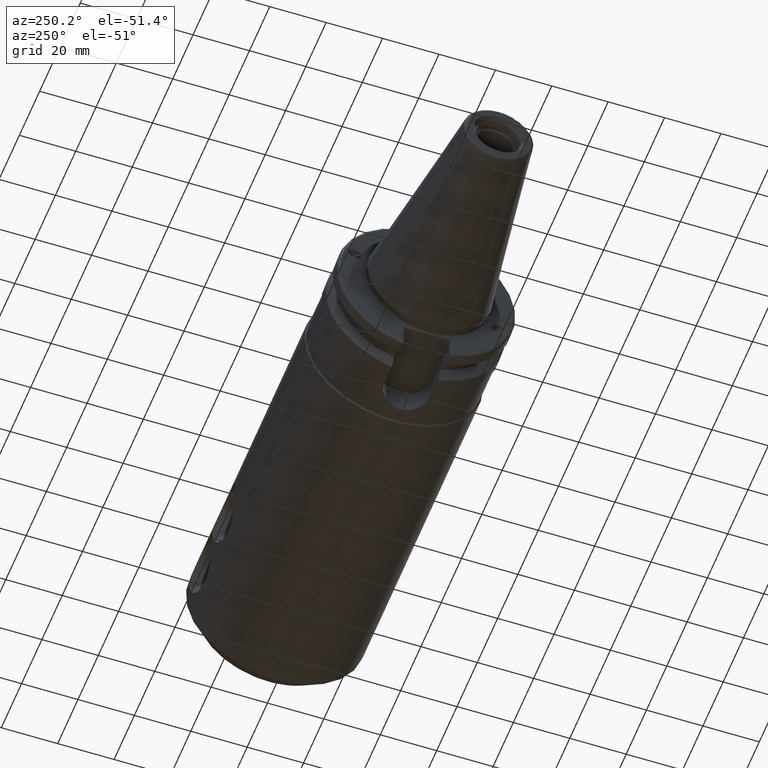
[diagram: clean part render]
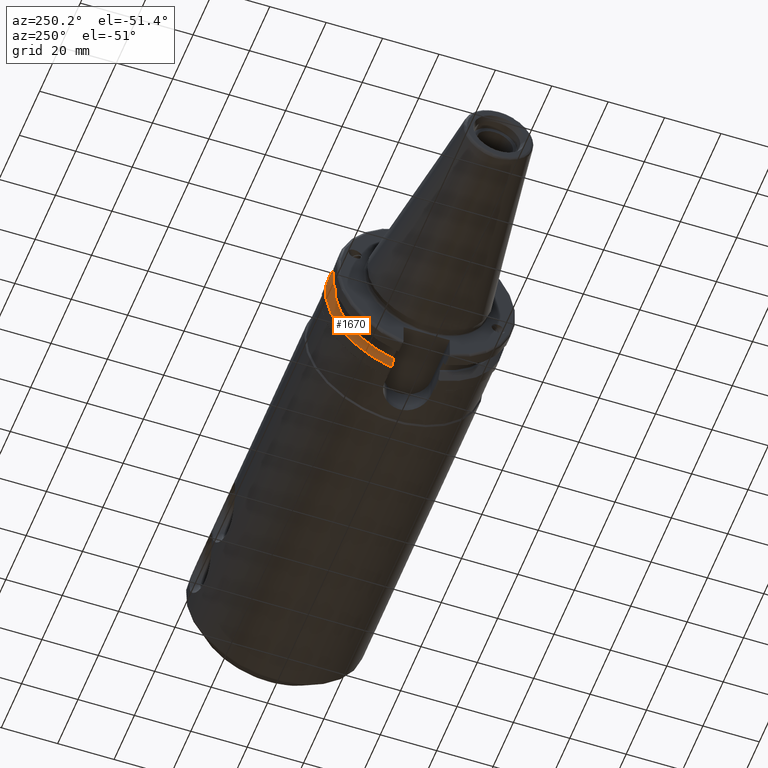
[diagram: same view with one face highlighted and labeled with its STEP entity id]
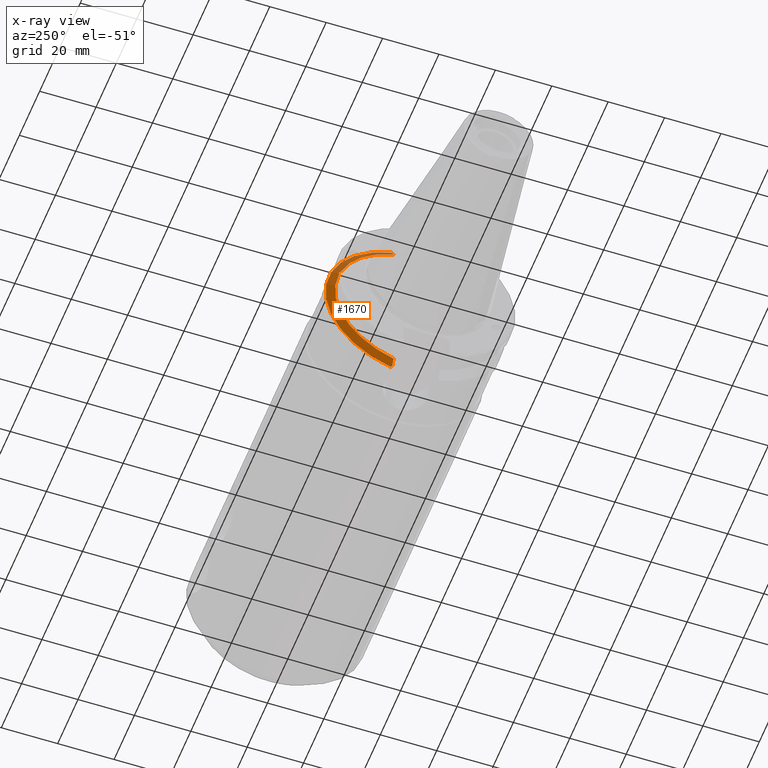
[diagram: x-ray of the same camera — body ghosted, the highlighted face saturated]
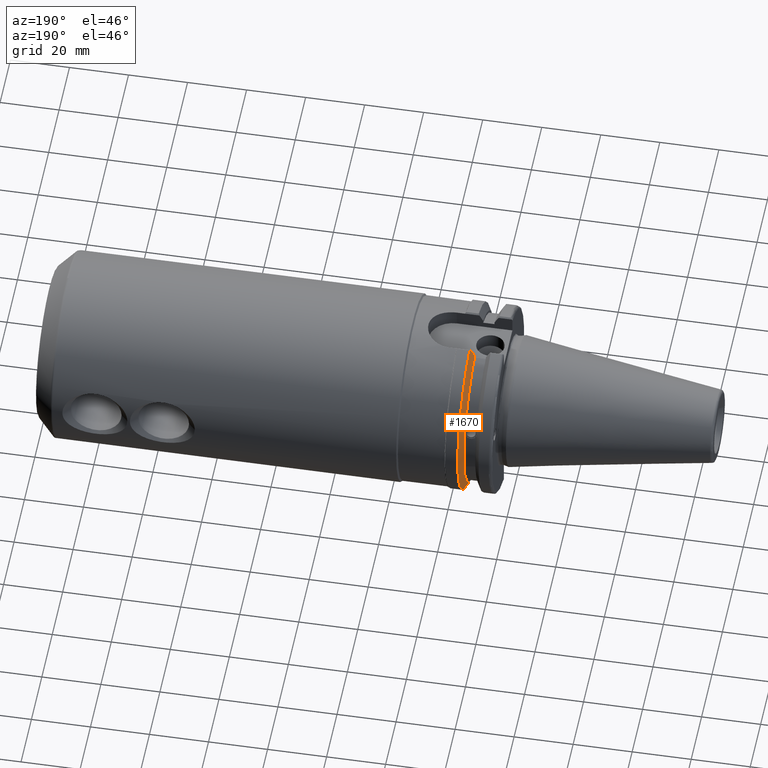
[diagram: same view with one face highlighted and labeled with its STEP entity id]
A machine part, auxiliary view. The second image highlights one B-rep face of the part: STEP entity #1670.
The next image is the same camera in x-ray: the body ghosted, the highlighted face saturated — about 3% of this face is hidden behind the body in this view.
A second angle (auxiliary view) of the same face is appended — the face is thin or edge-on in the first view.
In plain terms, the highlighted conical surface has half-angle 60 deg.
Its self-contained STEP definition (entity closure, byte-faithful):
#19=(
BOUNDED_CURVE()
B_SPLINE_CURVE(2,(#3201,#3202,#3203),.UNSPECIFIED.,.F.,.F.)
B_SPLINE_CURVE_WITH_KNOTS((3,3),(0.,0.276549142796799),.UNSPECIFIED.)
CURVE()
GEOMETRIC_REPRESENTATION_ITEM()
RATIONAL_B_SPLINE_CURVE((1.,1.00095203904259,1.00031614445126))
REPRESENTATION_ITEM('')
);
#20=(
BOUNDED_CURVE()
B_SPLINE_CURVE(2,(#3205,#3206,#3207),.UNSPECIFIED.,.F.,.F.)
B_SPLINE_CURVE_WITH_KNOTS((3,3),(0.,0.0639048713675657),.UNSPECIFIED.)
CURVE()
GEOMETRIC_REPRESENTATION_ITEM()
RATIONAL_B_SPLINE_CURVE((1.,1.00028444218289,1.00047644010584))
REPRESENTATION_ITEM('')
);
#21=(
BOUNDED_CURVE()
B_SPLINE_CURVE(2,(#3211,#3212,#3213),.UNSPECIFIED.,.F.,.F.)
B_SPLINE_CURVE_WITH_KNOTS((3,3),(0.329353533631213,0.393258405001023),
 .UNSPECIFIED.)
CURVE()
GEOMETRIC_REPRESENTATION_ITEM()
RATIONAL_B_SPLINE_CURVE((1.00047644010591,1.00028444218294,1.))
REPRESENTATION_ITEM('')
);
#22=(
BOUNDED_CURVE()
B_SPLINE_CURVE(2,(#3215,#3216,#3217),.UNSPECIFIED.,.F.,.F.)
B_SPLINE_CURVE_WITH_KNOTS((3,3),(0.0550586467390499,0.33160778953585),
 .UNSPECIFIED.)
CURVE()
GEOMETRIC_REPRESENTATION_ITEM()
RATIONAL_B_SPLINE_CURVE((1.00031614445126,1.00095203904259,1.))
REPRESENTATION_ITEM('')
);
#189=FACE_OUTER_BOUND('',#294,.T.);
#294=EDGE_LOOP('',(#1346,#1347,#1348,#1349,#1350,#1351,#1352,#1353,#1354));
#383=B_SPLINE_CURVE_WITH_KNOTS('',3,(#3126,#3127,#3128,#3129,#3130,#3131,
#3132,#3133),.UNSPECIFIED.,.F.,.F.,(4,2,2,4),(0.451995700189024,0.46454782854766,
0.504528771685165,0.544509714822671),.UNSPECIFIED.);
#387=B_SPLINE_CURVE_WITH_KNOTS('',3,(#3188,#3189,#3190,#3191,#3192,#3193,
#3194,#3195),.UNSPECIFIED.,.F.,.F.,(4,2,2,4),(0.544509714822671,0.584490657960176,
0.624471601097681,0.637023729456318),.UNSPECIFIED.);
#448=CIRCLE('',#1852,28.9593772964944);
#449=CIRCLE('',#1853,31.75);
#450=CIRCLE('',#1854,28.9593772964944);
#767=VERTEX_POINT('',#3123);
#768=VERTEX_POINT('',#3125);
#775=VERTEX_POINT('',#3186);
#776=VERTEX_POINT('',#3198);
#777=VERTEX_POINT('',#3200);
#778=VERTEX_POINT('',#3204);
#779=VERTEX_POINT('',#3208);
#780=VERTEX_POINT('',#3210);
#781=VERTEX_POINT('',#3214);
#980=EDGE_CURVE('',#768,#767,#383,.T.);
#988=EDGE_CURVE('',#767,#775,#387,.T.);
#989=EDGE_CURVE('',#775,#776,#448,.T.);
#990=EDGE_CURVE('',#776,#777,#19,.T.);
#991=EDGE_CURVE('',#778,#777,#20,.T.);
#992=EDGE_CURVE('',#779,#778,#449,.T.);
#993=EDGE_CURVE('',#780,#779,#21,.T.);
#994=EDGE_CURVE('',#780,#781,#22,.T.);
#995=EDGE_CURVE('',#781,#768,#450,.T.);
#1346=ORIENTED_EDGE('',*,*,#980,.T.);
#1347=ORIENTED_EDGE('',*,*,#988,.T.);
#1348=ORIENTED_EDGE('',*,*,#989,.T.);
#1349=ORIENTED_EDGE('',*,*,#990,.T.);
#1350=ORIENTED_EDGE('',*,*,#991,.F.);
#1351=ORIENTED_EDGE('',*,*,#992,.F.);
#1352=ORIENTED_EDGE('',*,*,#993,.F.);
#1353=ORIENTED_EDGE('',*,*,#994,.T.);
#1354=ORIENTED_EDGE('',*,*,#995,.T.);
#1618=CONICAL_SURFACE('',#1851,30.3546886482472,1.0471975511966);
#1670=ADVANCED_FACE('',(#189),#1618,.T.);
#1851=AXIS2_PLACEMENT_3D('',#3197,#2203,#2204);
#1852=AXIS2_PLACEMENT_3D('',#3199,#2205,#2206);
#1853=AXIS2_PLACEMENT_3D('',#3209,#2207,#2208);
#1854=AXIS2_PLACEMENT_3D('',#3218,#2209,#2210);
#2203=DIRECTION('center_axis',(1.,0.,0.));
#2204=DIRECTION('ref_axis',(0.,1.,0.));
#2205=DIRECTION('center_axis',(1.,0.,0.));
#2206=DIRECTION('ref_axis',(0.,0.,-1.));
#2207=DIRECTION('center_axis',(1.,0.,0.));
#2208=DIRECTION('ref_axis',(0.,0.,-1.));
#2209=DIRECTION('center_axis',(1.,0.,0.));
#2210=DIRECTION('ref_axis',(0.,0.,-1.));
#3123=CARTESIAN_POINT('',(13.227,27.51401829017,10.0142836826778));
#3125=CARTESIAN_POINT('',(13.042,27.4956274489925,9.09043478536247));
#3126=CARTESIAN_POINT('Ctrl Pts',(13.042,27.4956274489925,9.09043478536247));
#3127=CARTESIAN_POINT('Ctrl Pts',(13.0561204071996,27.5087667900418,9.12860597076219));
#3128=CARTESIAN_POINT('Ctrl Pts',(13.0695929817857,27.5206055003512,9.16696618806878));
#3129=CARTESIAN_POINT('Ctrl Pts',(13.122981441159,27.5642934663232,9.32791534028656));
#3130=CARTESIAN_POINT('Ctrl Pts',(13.1611197084175,27.5867382255984,9.46717946402648));
#3131=CARTESIAN_POINT('Ctrl Pts',(13.2133106446058,27.5847569104122,9.74771639360672));
#3132=CARTESIAN_POINT('Ctrl Pts',(13.227,27.559599249844,9.8890510252165));
#3133=CARTESIAN_POINT('Ctrl Pts',(13.227,27.51401829017,10.0142836826778));
#3186=CARTESIAN_POINT('',(13.042,26.9060914640648,10.7101715919071));
#3188=CARTESIAN_POINT('Ctrl Pts',(13.227,27.51401829017,10.0142836826778));
#3189=CARTESIAN_POINT('Ctrl Pts',(13.227,27.4684373304961,10.139516340139));
#3190=CARTESIAN_POINT('Ctrl Pts',(13.2133106446058,27.3968610665578,10.2639559818059));
#3191=CARTESIAN_POINT('Ctrl Pts',(13.1611197084175,27.2180531796526,10.4801333026531));
#3192=CARTESIAN_POINT('Ctrl Pts',(13.122981441159,27.1113422433189,10.5723885976054));
#3193=CARTESIAN_POINT('Ctrl Pts',(13.0695929817857,26.9744191989197,10.6676007180673));
#3194=CARTESIAN_POINT('Ctrl Pts',(13.0561204071996,26.9406927482839,10.6893765730703));
#3195=CARTESIAN_POINT('Ctrl Pts',(13.042,26.9060914640648,10.7101715919071));
#3197=CARTESIAN_POINT('Origin',(13.8475833845378,0.,0.));
#3198=CARTESIAN_POINT('',(13.042,8.19,27.7771386827498));
#3199=CARTESIAN_POINT('Origin',(13.042,0.,0.));
#3200=CARTESIAN_POINT('',(14.3744146964874,8.19,30.1755016258903));
#3201=CARTESIAN_POINT('Ctrl Pts',(13.042,8.19,27.7771386827498));
#3202=CARTESIAN_POINT('Ctrl Pts',(13.6806364384741,8.19,28.930368953967));
#3203=CARTESIAN_POINT('Ctrl Pts',(14.3744146964874,8.19,30.1755016258903));
#3204=CARTESIAN_POINT('',(14.6531667690756,8.67204822802685,30.5427254764662));
#3205=CARTESIAN_POINT('Ctrl Pts',(14.6531667690756,8.67204822802686,30.5427254764662));
#3206=CARTESIAN_POINT('Ctrl Pts',(14.5121085187837,8.42917748262643,30.3577067892629));
#3207=CARTESIAN_POINT('Ctrl Pts',(14.3744146964874,8.19,30.1755016258903));
#3208=CARTESIAN_POINT('',(14.6531667690756,8.67204822802685,-30.5427254764662));
#3209=CARTESIAN_POINT('Origin',(14.6531667690756,0.,0.));
#3210=CARTESIAN_POINT('',(14.3744146964874,8.19,-30.1755016258903));
#3211=CARTESIAN_POINT('Ctrl Pts',(14.3744146964874,8.19,-30.1755016258903));
#3212=CARTESIAN_POINT('Ctrl Pts',(14.5121085187884,8.42917748263462,-30.3577067892692));
#3213=CARTESIAN_POINT('Ctrl Pts',(14.6531667690756,8.67204822802685,-30.5427254764662));
#3214=CARTESIAN_POINT('',(13.042,8.19,-27.7771386827498));
#3215=CARTESIAN_POINT('Ctrl Pts',(14.3744146964874,8.19,-30.1755016258903));
#3216=CARTESIAN_POINT('Ctrl Pts',(13.6806364384741,8.19,-28.930368953967));
#3217=CARTESIAN_POINT('Ctrl Pts',(13.042,8.19,-27.7771386827498));
#3218=CARTESIAN_POINT('Origin',(13.042,0.,0.));